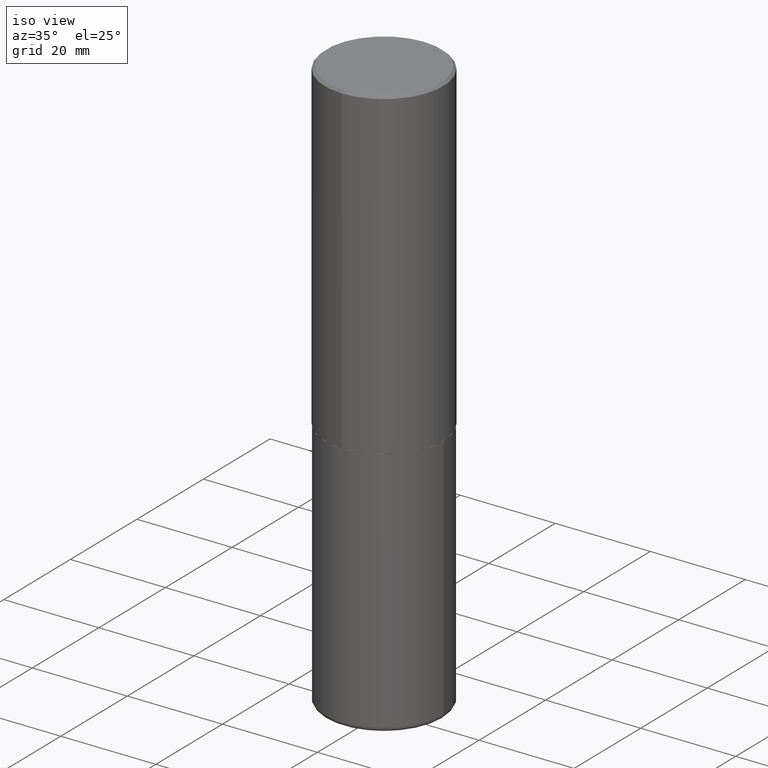
[diagram: clean part render]
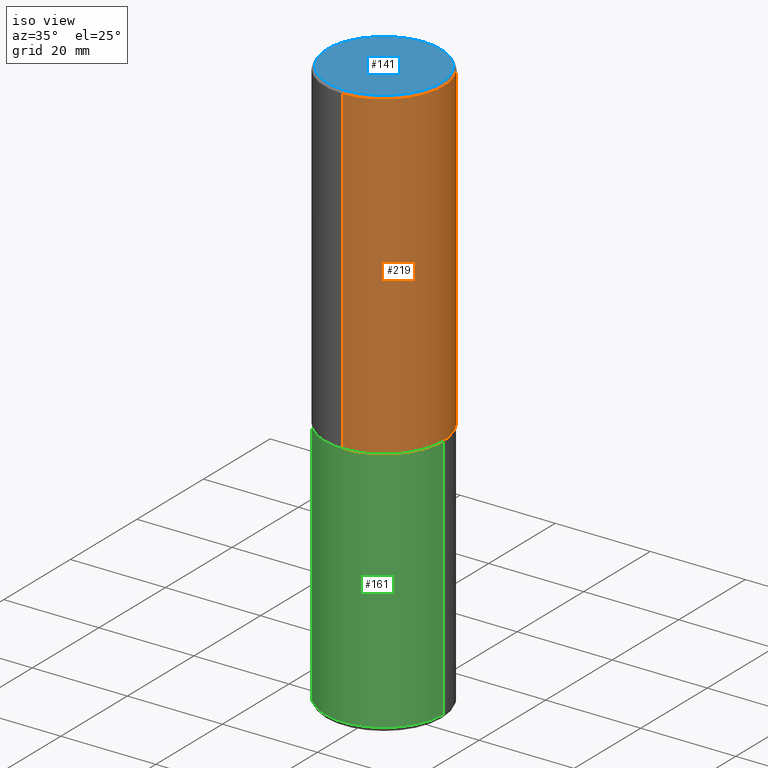
[diagram: same view with three faces highlighted in distinct colors, each labeled with its STEP entity id]
A machine part, iso view with three faces highlighted in distinct colors.
Their STEP definitions:

[orange] entity #219 — the highlighted cylindrical surface (partial cylindrical patch) has radius 12.5006 mm, axis along (-0, 0, 1).
#15 = VERTEX_POINT ( 'NONE', #297 ) ;
#39 = ORIENTED_EDGE ( 'NONE', *, *, #53, .T. ) ;
#45 = EDGE_LOOP ( 'NONE', ( #39, #264, #207, #135 ) ) ;
#49 = DIRECTION ( 'NONE',  ( -2.447117958567619178E-29, 3.489119658767506053E-15, 1.000000000000000000 ) ) ;
#53 = EDGE_CURVE ( 'NONE', #331, #15, #138, .T. ) ;
#56 = FACE_OUTER_BOUND ( 'NONE', #45, .T. ) ;
#67 = EDGE_CURVE ( 'NONE', #331, #322, #244, .T. ) ;
#72 = AXIS2_PLACEMENT_3D ( 'NONE', #209, #49, #180 ) ;
#135 = ORIENTED_EDGE ( 'NONE', *, *, #67, .F. ) ;
#138 = CIRCLE ( 'NONE', #72, 0.4921500000000002539 ) ;
#152 = CARTESIAN_POINT ( 'NONE',  ( 0.000000000000000000, 0.000000000000000000, 0.000000000000000000 ) ) ;
#160 = CARTESIAN_POINT ( 'NONE',  ( -3.436665081823296565E-15, -0.4921500000000000874, 1.717170240062428491E-15 ) ) ;
#164 = AXIS2_PLACEMENT_3D ( 'NONE', #386, #345, #213 ) ;
#180 = DIRECTION ( 'NONE',  ( -6.982962677686266711E-15, -1.000000000000000000, 3.330506545156064285E-15 ) ) ;
#185 = DIRECTION ( 'NONE',  ( -6.982962677686265922E-15, -1.000000000000000000, 3.489119658767506053E-15 ) ) ;
#186 = CYLINDRICAL_SURFACE ( 'NONE', #330, 0.4921500000000000874 ) ;
#202 = VERTEX_POINT ( 'NONE', #221 ) ;
#204 = EDGE_CURVE ( 'NONE', #15, #202, #242, .T. ) ;
#207 = ORIENTED_EDGE ( 'NONE', *, *, #214, .F. ) ;
#209 = CARTESIAN_POINT ( 'NONE',  ( 6.548977080718662055E-29, -9.337582030793598206E-15, -2.676199999999999690 ) ) ;
#213 = DIRECTION ( 'NONE',  ( -6.982962677686265922E-15, -1.000000000000000000, 3.486624039460257331E-15 ) ) ;
#214 = EDGE_CURVE ( 'NONE', #322, #202, #390, .T. ) ;
#219 = ADVANCED_FACE ( 'NONE', ( #56 ), #186, .T. ) ;
#221 = CARTESIAN_POINT ( 'NONE',  ( 3.436665081823295777E-15, 0.4921499999999998098, -0.02000000000000182188 ) ) ;
#242 = LINE ( 'NONE', #411, #351 ) ;
#244 = LINE ( 'NONE', #160, #285 ) ;
#247 = DIRECTION ( 'NONE',  ( -2.447117958567619178E-29, 3.489119658767506053E-15, 1.000000000000000000 ) ) ;
#264 = ORIENTED_EDGE ( 'NONE', *, *, #204, .T. ) ;
#278 = DIRECTION ( 'NONE',  ( -2.447117958567619178E-29, 3.489119658767506053E-15, 1.000000000000000000 ) ) ;
#285 = VECTOR ( 'NONE', #247, 39.37007874015748143 ) ;
#297 = CARTESIAN_POINT ( 'NONE',  ( 3.496936074043367212E-15, 0.4921499999999909281, -2.676200000000001467 ) ) ;
#322 = VERTEX_POINT ( 'NONE', #325 ) ;
#325 = CARTESIAN_POINT ( 'NONE',  ( -3.376394089603257868E-15, -0.4921499999999999764, -0.01999999999999839059 ) ) ;
#330 = AXIS2_PLACEMENT_3D ( 'NONE', #152, #413, #185 ) ;
#331 = VERTEX_POINT ( 'NONE', #394 ) ;
#345 = DIRECTION ( 'NONE',  ( -2.447117958567619178E-29, 3.489119658767506053E-15, 1.000000000000000000 ) ) ;
#351 = VECTOR ( 'NONE', #278, 39.37007874015748143 ) ;
#386 = CARTESIAN_POINT ( 'NONE',  ( 4.894235917135264524E-31, -6.978239317535049922E-17, -0.02000000000000010797 ) ) ;
#390 = CIRCLE ( 'NONE', #164, 0.4921499999999999209 ) ;
#394 = CARTESIAN_POINT ( 'NONE',  ( -3.436665081823232273E-15, -0.4921500000000095798, -2.676199999999997914 ) ) ;
#411 = CARTESIAN_POINT ( 'NONE',  ( 3.496936074043333291E-15, 0.4921500000000000874, -1.717170240062428491E-15 ) ) ;
#413 = DIRECTION ( 'NONE',  ( -2.447117958567619178E-29, 3.489119658767506053E-15, 1.000000000000000000 ) ) ;

[blue] entity #141 — the highlighted planar face has unit normal (0, -0, -1).
#34 = DIRECTION ( 'NONE',  ( -2.447117958567619178E-29, 3.489119658767506053E-15, 1.000000000000000000 ) ) ;
#50 = DIRECTION ( 'NONE',  ( -2.447117958567619178E-29, 3.489119658767506053E-15, 1.000000000000000000 ) ) ;
#61 = CARTESIAN_POINT ( 'NONE',  ( -3.307789109625541747E-15, -0.4721499999999996255, 1.872503941614685503E-15 ) ) ;
#69 = DIRECTION ( 'NONE',  ( -6.982962677686265922E-15, -1.000000000000000000, 3.489119658767506053E-15 ) ) ;
#95 = DIRECTION ( 'NONE',  ( 2.447117958567618897E-29, -3.489119658767506053E-15, -1.000000000000000000 ) ) ;
#111 = EDGE_LOOP ( 'NONE', ( #326, #267 ) ) ;
#124 = DIRECTION ( 'NONE',  ( 6.982962677686265922E-15, 1.000000000000000000, -3.489119658767506053E-15 ) ) ;
#141 = ADVANCED_FACE ( 'NONE', ( #309 ), #316, .F. ) ;
#144 = AXIS2_PLACEMENT_3D ( 'NONE', #157, #95, #124 ) ;
#157 = CARTESIAN_POINT ( 'NONE',  ( 3.297005828269567997E-15, 0.4721499999999996255, -1.534829799523272196E-15 ) ) ;
#173 = DIRECTION ( 'NONE',  ( -6.982962677686265922E-15, -1.000000000000000000, 3.489119658767506053E-15 ) ) ;
#228 = CARTESIAN_POINT ( 'NONE',  ( 3.366835455046432084E-15, 0.4721499999999996255, -1.422271752159468089E-15 ) ) ;
#240 = VERTEX_POINT ( 'NONE', #61 ) ;
#255 = CARTESIAN_POINT ( 'NONE',  ( -5.508856381705404921E-45, 7.854569916190676353E-31, 2.251160947276086573E-16 ) ) ;
#259 = CIRCLE ( 'NONE', #412, 0.4721499999999996255 ) ;
#267 = ORIENTED_EDGE ( 'NONE', *, *, #353, .T. ) ;
#304 = VERTEX_POINT ( 'NONE', #228 ) ;
#309 = FACE_OUTER_BOUND ( 'NONE', #111, .T. ) ;
#316 = PLANE ( 'NONE',  #144 ) ;
#326 = ORIENTED_EDGE ( 'NONE', *, *, #377, .T. ) ;
#338 = CIRCLE ( 'NONE', #367, 0.4721499999999996255 ) ;
#353 = EDGE_CURVE ( 'NONE', #240, #304, #259, .T. ) ;
#362 = CARTESIAN_POINT ( 'NONE',  ( -5.508856381705404921E-45, 7.854569916190676353E-31, 2.251160947276086573E-16 ) ) ;
#367 = AXIS2_PLACEMENT_3D ( 'NONE', #255, #50, #173 ) ;
#377 = EDGE_CURVE ( 'NONE', #304, #240, #338, .T. ) ;
#412 = AXIS2_PLACEMENT_3D ( 'NONE', #362, #34, #69 ) ;

[green] entity #161 — the highlighted cylindrical surface (partial cylindrical patch) has radius 12.5006 mm, axis along (-0, 0, 1).
#1 = CARTESIAN_POINT ( 'NONE',  ( 0.000000000000000000, 0.000000000000000000, 0.000000000000000000 ) ) ;
#27 = CARTESIAN_POINT ( 'NONE',  ( 0.4921500000000000874, -1.993181951905385030E-14, -4.724399999999999267 ) ) ;
#32 = DIRECTION ( 'NONE',  ( 1.000000000000000000, -6.982962677686265922E-15, 4.876176775795935793E-29 ) ) ;
#41 = EDGE_CURVE ( 'NONE', #81, #361, #148, .T. ) ;
#81 = VERTEX_POINT ( 'NONE', #220 ) ;
#88 = DIRECTION ( 'NONE',  ( -2.445468806185136877E-29, 3.491481338843145188E-15, 1.000000000000000000 ) ) ;
#89 = DIRECTION ( 'NONE',  ( -2.445468806185136597E-29, 3.491481338843145583E-15, 1.000000000000000000 ) ) ;
#90 = LINE ( 'NONE', #192, #196 ) ;
#99 = EDGE_CURVE ( 'NONE', #361, #372, #128, .T. ) ;
#105 = CARTESIAN_POINT ( 'NONE',  ( 0.4921499999999999764, -1.278405892217416209E-14, -2.677199999999999580 ) ) ;
#128 = CIRCLE ( 'NONE', #292, 0.4921499999999999764 ) ;
#140 = ORIENTED_EDGE ( 'NONE', *, *, #402, .T. ) ;
#146 = CARTESIAN_POINT ( 'NONE',  ( -0.4921499999999999764, 3.496936074043332897E-15, -2.420853904668951509E-29 ) ) ;
#148 = LINE ( 'NONE', #146, #206 ) ;
#156 = DIRECTION ( 'NONE',  ( 1.000000000000000000, -6.982962677686261977E-15, 0.000000000000000000 ) ) ;
#161 = ADVANCED_FACE ( 'NONE', ( #275 ), #189, .T. ) ;
#183 = AXIS2_PLACEMENT_3D ( 'NONE', #1, #89, #32 ) ;
#188 = EDGE_CURVE ( 'NONE', #406, #372, #90, .T. ) ;
#189 = CYLINDRICAL_SURFACE ( 'NONE', #183, 0.4921499999999999764 ) ;
#192 = CARTESIAN_POINT ( 'NONE',  ( 0.4921499999999999764, -3.436665081823295777E-15, 2.399810400207969603E-29 ) ) ;
#196 = VECTOR ( 'NONE', #250, 39.37007874015748143 ) ;
#206 = VECTOR ( 'NONE', #88, 39.37007874015748143 ) ;
#216 = CARTESIAN_POINT ( 'NONE',  ( 6.547009087918846705E-29, -9.347393840350866318E-15, -2.677199999999999580 ) ) ;
#220 = CARTESIAN_POINT ( 'NONE',  ( -0.4921500000000000874, -1.299821836318722241E-14, -4.724399999999999267 ) ) ;
#250 = DIRECTION ( 'NONE',  ( -2.445468806185136877E-29, 3.491481338843145188E-15, 1.000000000000000000 ) ) ;
#257 = CARTESIAN_POINT ( 'NONE',  ( -0.4921499999999999764, -9.424338064747378311E-15, -2.677199999999999580 ) ) ;
#275 = FACE_OUTER_BOUND ( 'NONE', #395, .T. ) ;
#292 = AXIS2_PLACEMENT_3D ( 'NONE', #216, #343, #376 ) ;
#308 = DIRECTION ( 'NONE',  ( -2.445468806185136597E-29, 3.491481338843145583E-15, 1.000000000000000000 ) ) ;
#313 = AXIS2_PLACEMENT_3D ( 'NONE', #335, #308, #156 ) ;
#332 = ORIENTED_EDGE ( 'NONE', *, *, #99, .F. ) ;
#335 = CARTESIAN_POINT ( 'NONE',  ( 1.155337282794105951E-28, -1.649515443723055610E-14, -4.724399999999999267 ) ) ;
#343 = DIRECTION ( 'NONE',  ( -2.445468806185136597E-29, 3.491481338843145583E-15, 1.000000000000000000 ) ) ;
#361 = VERTEX_POINT ( 'NONE', #257 ) ;
#370 = ORIENTED_EDGE ( 'NONE', *, *, #188, .T. ) ;
#372 = VERTEX_POINT ( 'NONE', #105 ) ;
#375 = ORIENTED_EDGE ( 'NONE', *, *, #41, .F. ) ;
#376 = DIRECTION ( 'NONE',  ( 1.000000000000000000, -6.982962677686265922E-15, 0.000000000000000000 ) ) ;
#392 = CIRCLE ( 'NONE', #313, 0.4921499999999999764 ) ;
#395 = EDGE_LOOP ( 'NONE', ( #375, #140, #370, #332 ) ) ;
#402 = EDGE_CURVE ( 'NONE', #81, #406, #392, .T. ) ;
#406 = VERTEX_POINT ( 'NONE', #27 ) ;